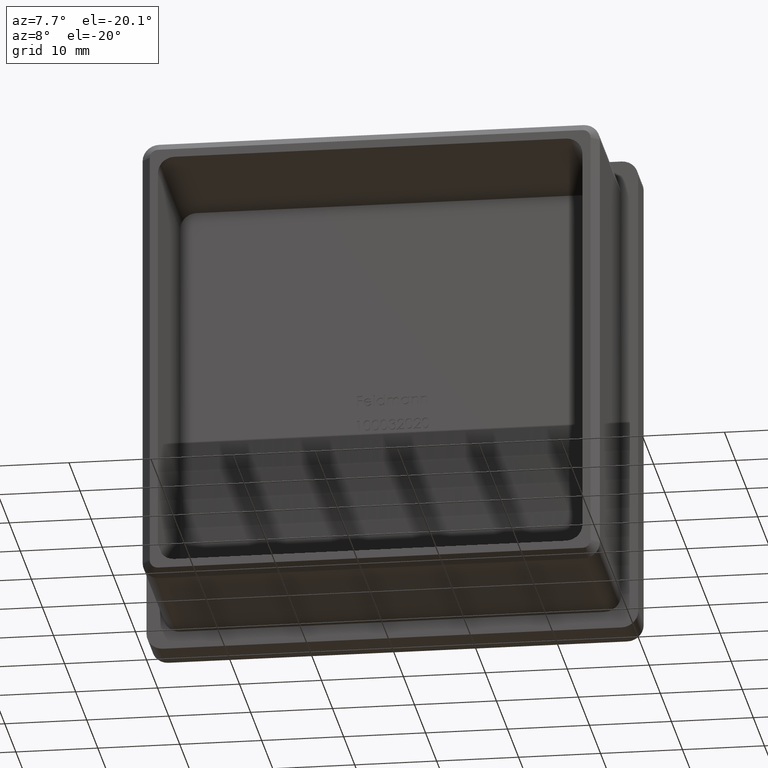
[diagram: clean part render]
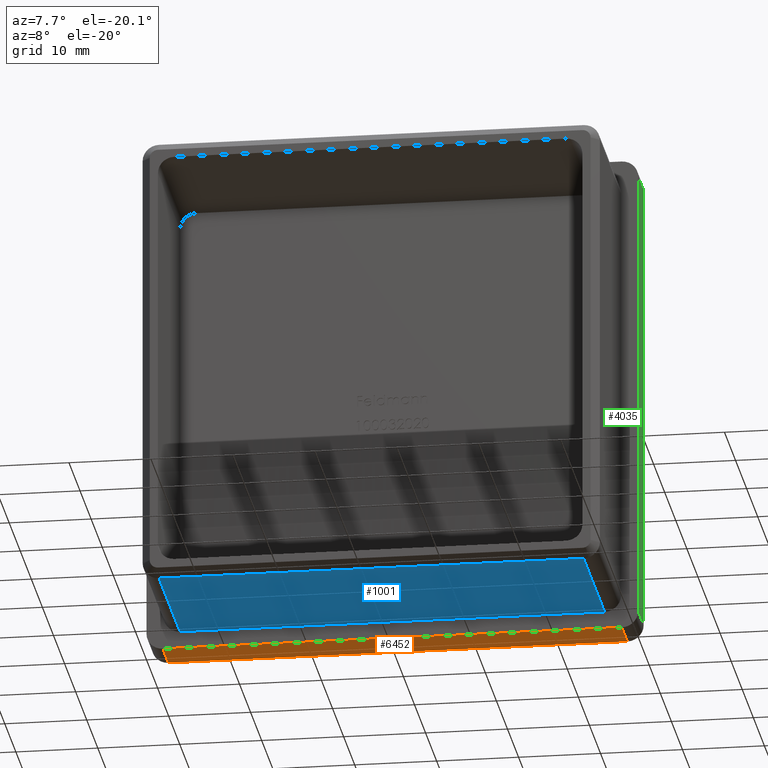
[diagram: same view with three faces highlighted in distinct colors, each labeled with its STEP entity id]
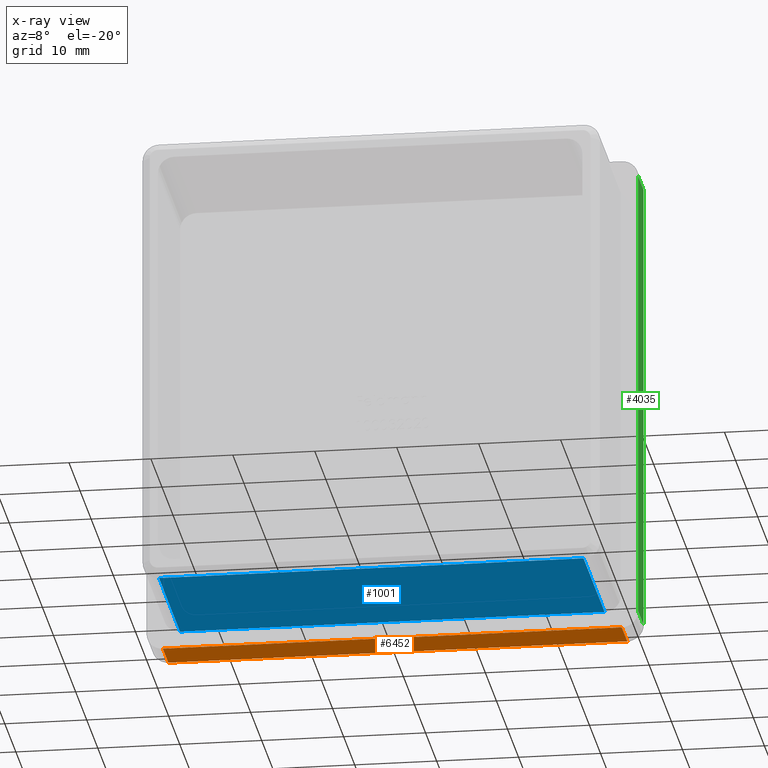
[diagram: x-ray of the same camera — body ghosted, the three highlighted faces saturated]
A machine part, auxiliary view with three faces highlighted in distinct colors.
The next image is the same camera in x-ray (body ghosted, the three faces saturated) — at least one of them is partly hidden behind the body in this view.
Their STEP definitions:

[orange] entity #6452 — the highlighted planar face has unit normal (0, 0, 1).
#782 = PLANE ( 'NONE',  #1256 ) ;
#890 = CARTESIAN_POINT ( 'NONE',  ( -30.00000000000000400, 5.000000000000000000, -29.99999999999999600 ) ) ;
#1186 = ORIENTED_EDGE ( 'NONE', *, *, #12622, .F. ) ;
#1256 = AXIS2_PLACEMENT_3D ( 'NONE', #890, #6701, #7863 ) ;
#1303 = EDGE_CURVE ( 'NONE', #3250, #5212, #1980, .T. ) ;
#1346 = CARTESIAN_POINT ( 'NONE',  ( 27.99999999999999300, 0.0000000000000000000, -29.99999999999999600 ) ) ;
#1980 = LINE ( 'NONE', #11970, #10899 ) ;
#2325 = LINE ( 'NONE', #13833, #5287 ) ;
#2671 = CARTESIAN_POINT ( 'NONE',  ( -28.00000000000000400, 0.0000000000000000000, -29.99999999999999600 ) ) ;
#2711 = EDGE_CURVE ( 'NONE', #5212, #8628, #2325, .T. ) ;
#3012 = VECTOR ( 'NONE', #10445, 1000.000000000000000 ) ;
#3156 = CARTESIAN_POINT ( 'NONE',  ( -30.00000000000000400, 5.000000000000000000, -29.99999999999999600 ) ) ;
#3250 = VERTEX_POINT ( 'NONE', #1346 ) ;
#3326 = LINE ( 'NONE', #3156, #10584 ) ;
#5212 = VERTEX_POINT ( 'NONE', #2671 ) ;
#5287 = VECTOR ( 'NONE', #13883, 1000.000000000000000 ) ;
#5800 = CARTESIAN_POINT ( 'NONE',  ( 27.99999999999999300, 5.000000000000000000, -29.99999999999999600 ) ) ;
#6452 = ADVANCED_FACE ( 'NONE', ( #10829 ), #782, .F. ) ;
#6701 = DIRECTION ( 'NONE',  ( 0.0000000000000000000, 0.0000000000000000000, 1.000000000000000000 ) ) ;
#6855 = ORIENTED_EDGE ( 'NONE', *, *, #1303, .T. ) ;
#7763 = LINE ( 'NONE', #5800, #3012 ) ;
#7863 = DIRECTION ( 'NONE',  ( 1.000000000000000000, 0.0000000000000000000, -0.0000000000000000000 ) ) ;
#8628 = VERTEX_POINT ( 'NONE', #13944 ) ;
#8938 = EDGE_CURVE ( 'NONE', #10941, #3250, #7763, .T. ) ;
#9576 = CARTESIAN_POINT ( 'NONE',  ( 27.99999999999999300, 5.000000000000000000, -29.99999999999999600 ) ) ;
#10445 = DIRECTION ( 'NONE',  ( 0.0000000000000000000, -1.000000000000000000, 0.0000000000000000000 ) ) ;
#10584 = VECTOR ( 'NONE', #14725, 1000.000000000000000 ) ;
#10829 = FACE_OUTER_BOUND ( 'NONE', #13613, .T. ) ;
#10899 = VECTOR ( 'NONE', #11920, 1000.000000000000000 ) ;
#10941 = VERTEX_POINT ( 'NONE', #9576 ) ;
#11920 = DIRECTION ( 'NONE',  ( -1.000000000000000000, -0.0000000000000000000, -0.0000000000000000000 ) ) ;
#11970 = CARTESIAN_POINT ( 'NONE',  ( -30.00000000000000400, 0.0000000000000000000, -29.99999999999999600 ) ) ;
#12329 = ORIENTED_EDGE ( 'NONE', *, *, #8938, .T. ) ;
#12570 = ORIENTED_EDGE ( 'NONE', *, *, #2711, .T. ) ;
#12622 = EDGE_CURVE ( 'NONE', #10941, #8628, #3326, .T. ) ;
#13613 = EDGE_LOOP ( 'NONE', ( #1186, #12329, #6855, #12570 ) ) ;
#13833 = CARTESIAN_POINT ( 'NONE',  ( -28.00000000000000400, 5.000000000000000000, -29.99999999999999600 ) ) ;
#13883 = DIRECTION ( 'NONE',  ( -0.0000000000000000000, 1.000000000000000000, -0.0000000000000000000 ) ) ;
#13944 = CARTESIAN_POINT ( 'NONE',  ( -28.00000000000000400, 5.000000000000000000, -29.99999999999999600 ) ) ;
#14725 = DIRECTION ( 'NONE',  ( -1.000000000000000000, -0.0000000000000000000, -0.0000000000000000000 ) ) ;

[blue] entity #1001 — the highlighted planar face has unit normal (-0, 0, 1).
#98 = VECTOR ( 'NONE', #4027, 1000.000000000000000 ) ;
#287 = VECTOR ( 'NONE', #6538, 1000.000000000000000 ) ;
#387 = DIRECTION ( 'NONE',  ( -1.000000000000000000, 0.0000000000000000000, -0.0000000000000000000 ) ) ;
#644 = LINE ( 'NONE', #4505, #98 ) ;
#695 = VERTEX_POINT ( 'NONE', #9217 ) ;
#1001 = ADVANCED_FACE ( 'NONE', ( #14172 ), #14469, .F. ) ;
#1347 = CARTESIAN_POINT ( 'NONE',  ( 25.89999999999999100, -19.00000000000000000, -27.89999999999999500 ) ) ;
#2157 = EDGE_CURVE ( 'NONE', #5861, #695, #13445, .T. ) ;
#2467 = EDGE_CURVE ( 'NONE', #3489, #7432, #11798, .T. ) ;
#2789 = ORIENTED_EDGE ( 'NONE', *, *, #3554, .T. ) ;
#2835 = CARTESIAN_POINT ( 'NONE',  ( -27.89999999999999500, -20.00000000000000000, -27.89999999999999500 ) ) ;
#2891 = DIRECTION ( 'NONE',  ( 1.000000000000000000, 0.0000000000000000000, 0.0000000000000000000 ) ) ;
#3489 = VERTEX_POINT ( 'NONE', #11376 ) ;
#3554 = EDGE_CURVE ( 'NONE', #695, #3489, #644, .T. ) ;
#4027 = DIRECTION ( 'NONE',  ( 1.000000000000000000, 0.0000000000000000000, 0.0000000000000000000 ) ) ;
#4505 = CARTESIAN_POINT ( 'NONE',  ( -27.89999999999999500, -0.0000000000000000000, -27.89999999999999500 ) ) ;
#5261 = CARTESIAN_POINT ( 'NONE',  ( -25.89999999999999100, -20.00000000000000000, -27.89999999999999500 ) ) ;
#5332 = EDGE_LOOP ( 'NONE', ( #7114, #7508, #7058, #2789 ) ) ;
#5861 = VERTEX_POINT ( 'NONE', #9831 ) ;
#6538 = DIRECTION ( 'NONE',  ( 0.0000000000000000000, 1.000000000000000000, -0.0000000000000000000 ) ) ;
#7058 = ORIENTED_EDGE ( 'NONE', *, *, #2157, .T. ) ;
#7114 = ORIENTED_EDGE ( 'NONE', *, *, #2467, .T. ) ;
#7432 = VERTEX_POINT ( 'NONE', #1347 ) ;
#7508 = ORIENTED_EDGE ( 'NONE', *, *, #11250, .T. ) ;
#8804 = LINE ( 'NONE', #13255, #13352 ) ;
#9217 = CARTESIAN_POINT ( 'NONE',  ( -25.89999999999999100, 0.0000000000000000000, -27.89999999999999500 ) ) ;
#9831 = CARTESIAN_POINT ( 'NONE',  ( -25.89999999999999100, -19.00000000000000000, -27.89999999999999500 ) ) ;
#10703 = VECTOR ( 'NONE', #13353, 1000.000000000000000 ) ;
#11250 = EDGE_CURVE ( 'NONE', #7432, #5861, #8804, .T. ) ;
#11376 = CARTESIAN_POINT ( 'NONE',  ( 25.89999999999999100, 0.0000000000000000000, -27.89999999999999500 ) ) ;
#11798 = LINE ( 'NONE', #14253, #10703 ) ;
#11982 = AXIS2_PLACEMENT_3D ( 'NONE', #2835, #12247, #2891 ) ;
#12247 = DIRECTION ( 'NONE',  ( -0.0000000000000000000, 0.0000000000000000000, 1.000000000000000000 ) ) ;
#13255 = CARTESIAN_POINT ( 'NONE',  ( -25.89999999999999100, -19.00000000000000000, -27.89999999999999500 ) ) ;
#13352 = VECTOR ( 'NONE', #387, 1000.000000000000000 ) ;
#13353 = DIRECTION ( 'NONE',  ( -0.0000000000000000000, -1.000000000000000000, -0.0000000000000000000 ) ) ;
#13445 = LINE ( 'NONE', #5261, #287 ) ;
#14172 = FACE_OUTER_BOUND ( 'NONE', #5332, .T. ) ;
#14253 = CARTESIAN_POINT ( 'NONE',  ( 25.89999999999999100, -20.00000000000000000, -27.89999999999999500 ) ) ;
#14469 = PLANE ( 'NONE',  #11982 ) ;

[green] entity #4035 — the highlighted planar face has unit normal (-1, 0, 0).
#266 = FACE_OUTER_BOUND ( 'NONE', #5563, .T. ) ;
#778 = ORIENTED_EDGE ( 'NONE', *, *, #4707, .T. ) ;
#1181 = ORIENTED_EDGE ( 'NONE', *, *, #2517, .T. ) ;
#1449 = CARTESIAN_POINT ( 'NONE',  ( 29.99999999999999600, 5.000000000000000000, -29.99999999999999600 ) ) ;
#2517 = EDGE_CURVE ( 'NONE', #5416, #13767, #8539, .T. ) ;
#2691 = VECTOR ( 'NONE', #10152, 1000.000000000000000 ) ;
#2741 = ORIENTED_EDGE ( 'NONE', *, *, #14471, .T. ) ;
#3418 = CARTESIAN_POINT ( 'NONE',  ( 29.99999999999999600, 0.0000000000000000000, -29.99999999999999600 ) ) ;
#3599 = VECTOR ( 'NONE', #7268, 1000.000000000000000 ) ;
#4035 = ADVANCED_FACE ( 'NONE', ( #266 ), #6136, .F. ) ;
#4265 = CARTESIAN_POINT ( 'NONE',  ( 30.00000000000000000, 5.000000000000000000, 28.00000000000000000 ) ) ;
#4592 = DIRECTION ( 'NONE',  ( -5.782411586589358600E-017, -0.0000000000000000000, -1.000000000000000000 ) ) ;
#4707 = EDGE_CURVE ( 'NONE', #11390, #10448, #8692, .T. ) ;
#5070 = DIRECTION ( 'NONE',  ( -1.000000000000000000, 0.0000000000000000000, 5.782411586589358600E-017 ) ) ;
#5074 = CARTESIAN_POINT ( 'NONE',  ( 30.00000000000000000, 0.0000000000000000000, 27.99999999999998600 ) ) ;
#5217 = DIRECTION ( 'NONE',  ( -5.782411586589358600E-017, -0.0000000000000000000, -1.000000000000000000 ) ) ;
#5416 = VERTEX_POINT ( 'NONE', #7684 ) ;
#5563 = EDGE_LOOP ( 'NONE', ( #2741, #778, #9875, #1181 ) ) ;
#6136 = PLANE ( 'NONE',  #11504 ) ;
#6152 = EDGE_CURVE ( 'NONE', #5416, #10448, #10465, .T. ) ;
#6228 = DIRECTION ( 'NONE',  ( 5.782411586589358600E-017, 0.0000000000000000000, 1.000000000000000000 ) ) ;
#7268 = DIRECTION ( 'NONE',  ( -0.0000000000000000000, 1.000000000000000000, -0.0000000000000000000 ) ) ;
#7684 = CARTESIAN_POINT ( 'NONE',  ( 30.00000000000000000, 5.000000000000000000, 27.99999999999998600 ) ) ;
#7843 = CARTESIAN_POINT ( 'NONE',  ( 29.99999999999999600, 0.0000000000000000000, -27.99999999999999600 ) ) ;
#8539 = LINE ( 'NONE', #4265, #2691 ) ;
#8692 = LINE ( 'NONE', #11949, #3599 ) ;
#9875 = ORIENTED_EDGE ( 'NONE', *, *, #6152, .F. ) ;
#10152 = DIRECTION ( 'NONE',  ( 0.0000000000000000000, -1.000000000000000000, 0.0000000000000000000 ) ) ;
#10448 = VERTEX_POINT ( 'NONE', #12814 ) ;
#10465 = LINE ( 'NONE', #13326, #13920 ) ;
#11101 = LINE ( 'NONE', #3418, #12376 ) ;
#11390 = VERTEX_POINT ( 'NONE', #7843 ) ;
#11504 = AXIS2_PLACEMENT_3D ( 'NONE', #1449, #5070, #6228 ) ;
#11949 = CARTESIAN_POINT ( 'NONE',  ( 29.99999999999999600, 5.000000000000000000, -27.99999999999999600 ) ) ;
#12376 = VECTOR ( 'NONE', #4592, 1000.000000000000000 ) ;
#12814 = CARTESIAN_POINT ( 'NONE',  ( 29.99999999999999600, 5.000000000000000000, -27.99999999999999600 ) ) ;
#13326 = CARTESIAN_POINT ( 'NONE',  ( 29.99999999999999600, 5.000000000000000000, -29.99999999999999600 ) ) ;
#13767 = VERTEX_POINT ( 'NONE', #5074 ) ;
#13920 = VECTOR ( 'NONE', #5217, 1000.000000000000000 ) ;
#14471 = EDGE_CURVE ( 'NONE', #13767, #11390, #11101, .T. ) ;